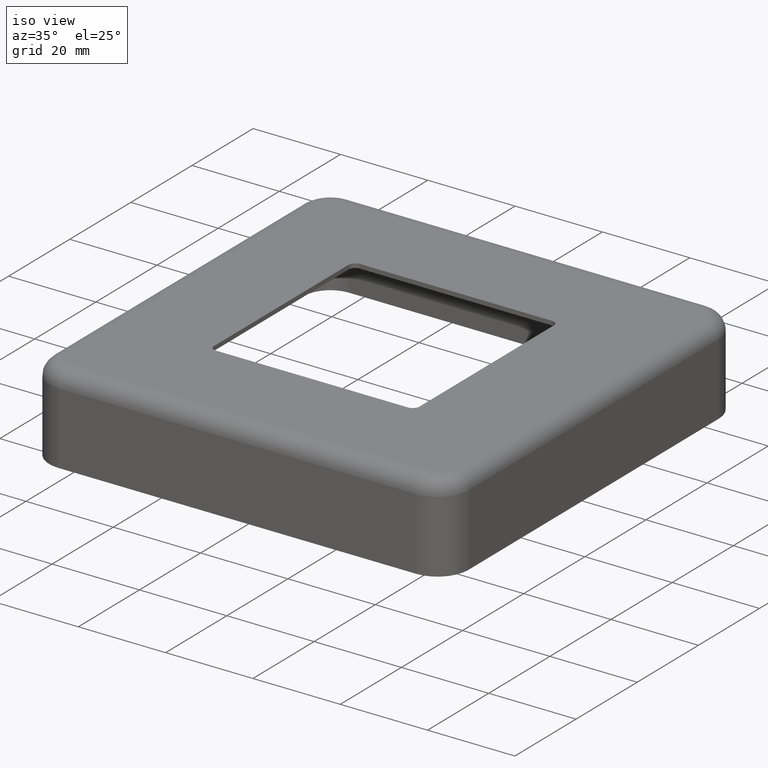
[diagram: clean part render]
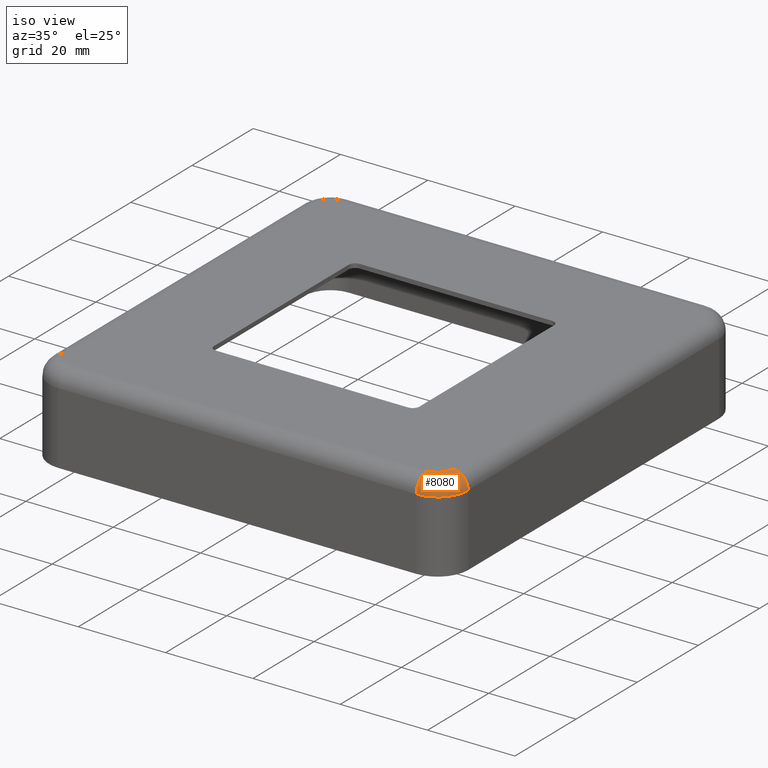
[diagram: same view with one face highlighted and labeled with its STEP entity id]
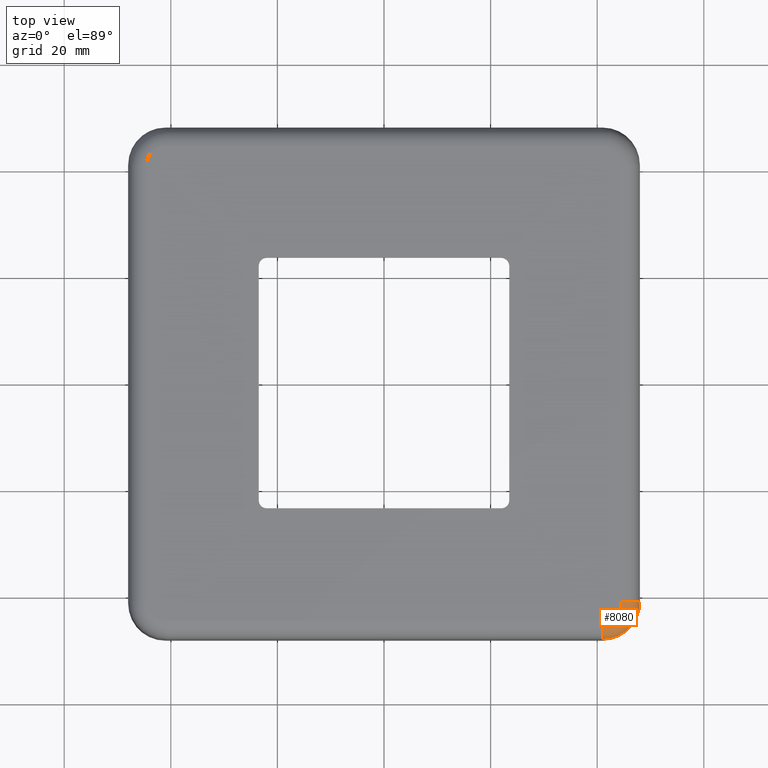
[diagram: same view with one face highlighted and labeled with its STEP entity id]
A machine part, iso view. The second image highlights one B-rep face of the part: STEP entity #8080.
A second angle (top view) of the same face is appended — the face is thin or edge-on in the first view.
In plain terms, the highlighted toroidal blend (fillet) surface has major radius 3.5 mm and minor (blend) radius 3.5 mm.
Its self-contained STEP definition (entity closure, byte-faithful):
#425 = ORIENTED_EDGE ( 'NONE', *, *, #13165, .F. ) ;
#572 = AXIS2_PLACEMENT_3D ( 'NONE', #12131, #11191, #2063 ) ;
#1571 = CIRCLE ( 'NONE', #572, 6.999999999999999112 ) ;
#1925 = VERTEX_POINT ( 'NONE', #4030 ) ;
#2063 = DIRECTION ( 'NONE',  ( 1.000000000000000000, 0.000000000000000000, 0.000000000000000000 ) ) ;
#2118 = CARTESIAN_POINT ( 'NONE',  ( 41.00000000000000000, -41.00000000000000000, 16.50000000000000000 ) ) ;
#2127 = CARTESIAN_POINT ( 'NONE',  ( 44.50000000000000000, -41.00000000000000000, 20.00000000000000000 ) ) ;
#2730 = DIRECTION ( 'NONE',  ( 0.000000000000000000, 1.000000000000000000, 0.000000000000000000 ) ) ;
#3323 = AXIS2_PLACEMENT_3D ( 'NONE', #3328, #10374, #6999 ) ;
#3328 = CARTESIAN_POINT ( 'NONE',  ( 41.00000000000000000, -44.50000000000000711, 16.50000000000000000 ) ) ;
#4030 = CARTESIAN_POINT ( 'NONE',  ( 40.99999999999999289, -48.00000000000000711, 16.50000000000000000 ) ) ;
#4253 = EDGE_CURVE ( 'NONE', #9828, #9064, #10463, .T. ) ;
#4679 = TOROIDAL_SURFACE ( 'NONE', #7074, 3.500000000000000000, 3.500000000000000000 ) ;
#4816 = EDGE_LOOP ( 'NONE', ( #425, #13569, #11019, #9145 ) ) ;
#5845 = CIRCLE ( 'NONE', #9894, 3.499999999999999556 ) ;
#6044 = VERTEX_POINT ( 'NONE', #7552 ) ;
#6999 = DIRECTION ( 'NONE',  ( 0.000000000000000000, 0.000000000000000000, 1.000000000000000000 ) ) ;
#7074 = AXIS2_PLACEMENT_3D ( 'NONE', #2118, #11245, #13597 ) ;
#7343 = DIRECTION ( 'NONE',  ( 1.000000000000000000, 0.000000000000000000, 0.000000000000000000 ) ) ;
#7552 = CARTESIAN_POINT ( 'NONE',  ( 48.00000000000000000, -41.00000000000000000, 16.50000000000000000 ) ) ;
#7813 = CARTESIAN_POINT ( 'NONE',  ( 41.00000000000000000, -44.50000000000000711, 20.00000000000000000 ) ) ;
#8080 = ADVANCED_FACE ( 'NONE', ( #14596 ), #4679, .T. ) ;
#9064 = VERTEX_POINT ( 'NONE', #7813 ) ;
#9145 = ORIENTED_EDGE ( 'NONE', *, *, #14160, .T. ) ;
#9828 = VERTEX_POINT ( 'NONE', #2127 ) ;
#9894 = AXIS2_PLACEMENT_3D ( 'NONE', #13032, #2730, #10634 ) ;
#10349 = EDGE_CURVE ( 'NONE', #1925, #9064, #11497, .T. ) ;
#10374 = DIRECTION ( 'NONE',  ( -1.000000000000000000, 0.000000000000000000, 0.000000000000000000 ) ) ;
#10463 = CIRCLE ( 'NONE', #11598, 3.500000000000003109 ) ;
#10634 = DIRECTION ( 'NONE',  ( 0.000000000000000000, 0.000000000000000000, 1.000000000000000000 ) ) ;
#11019 = ORIENTED_EDGE ( 'NONE', *, *, #10349, .F. ) ;
#11191 = DIRECTION ( 'NONE',  ( -0.000000000000000000, 0.000000000000000000, 1.000000000000000000 ) ) ;
#11245 = DIRECTION ( 'NONE',  ( -0.000000000000000000, 0.000000000000000000, 1.000000000000000000 ) ) ;
#11497 = CIRCLE ( 'NONE', #3323, 3.499999999999999556 ) ;
#11598 = AXIS2_PLACEMENT_3D ( 'NONE', #14282, #14329, #7343 ) ;
#12131 = CARTESIAN_POINT ( 'NONE',  ( 41.00000000000000000, -41.00000000000000000, 16.50000000000000000 ) ) ;
#13032 = CARTESIAN_POINT ( 'NONE',  ( 44.50000000000000000, -41.00000000000000000, 16.50000000000000000 ) ) ;
#13165 = EDGE_CURVE ( 'NONE', #9828, #6044, #5845, .T. ) ;
#13569 = ORIENTED_EDGE ( 'NONE', *, *, #4253, .T. ) ;
#13597 = DIRECTION ( 'NONE',  ( 1.000000000000000000, 0.000000000000000000, 0.000000000000000000 ) ) ;
#14160 = EDGE_CURVE ( 'NONE', #1925, #6044, #1571, .T. ) ;
#14282 = CARTESIAN_POINT ( 'NONE',  ( 41.00000000000000000, -41.00000000000000000, 20.00000000000000000 ) ) ;
#14329 = DIRECTION ( 'NONE',  ( 0.000000000000000000, -0.000000000000000000, -1.000000000000000000 ) ) ;
#14596 = FACE_OUTER_BOUND ( 'NONE', #4816, .T. ) ;